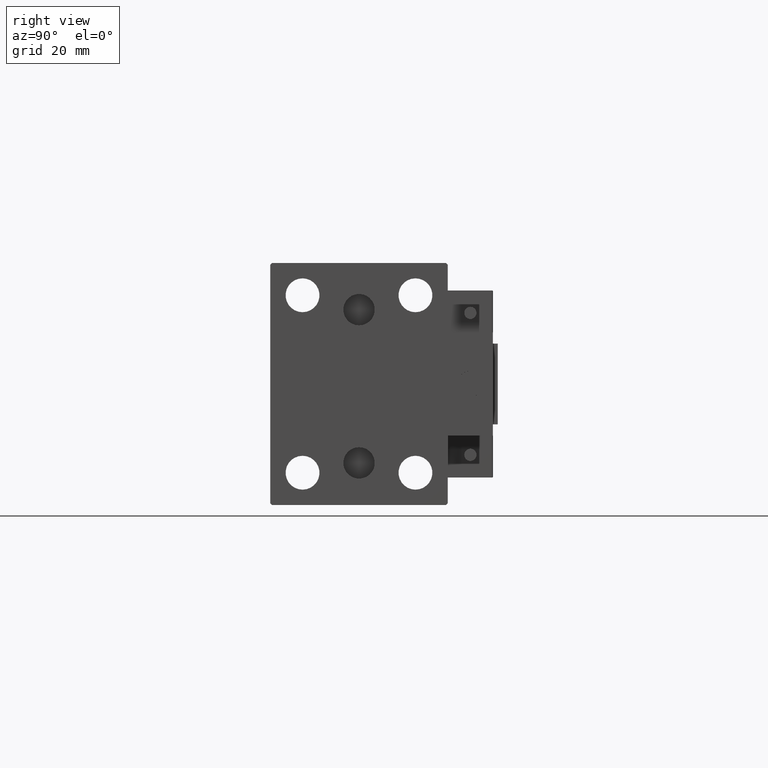
[diagram: clean part render]
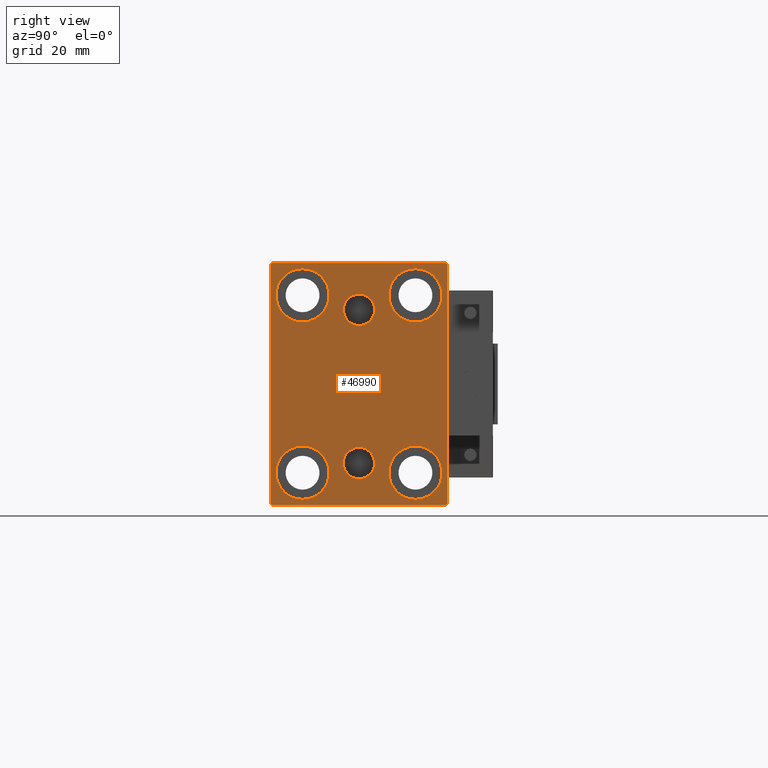
[diagram: same view with one face highlighted and labeled with its STEP entity id]
A machine part, right view. The second image highlights one B-rep face of the part: STEP entity #46990.
In plain terms, the highlighted planar face has unit normal (1, 0, 0).
Its self-contained STEP definition (entity closure, byte-faithful):
#546 = EDGE_LOOP ( 'NONE', ( #43515, #51242 ) ) ;
#714 = FACE_OUTER_BOUND ( 'NONE', #12357, .T. ) ;
#1055 = VERTEX_POINT ( 'NONE', #36162 ) ;
#1093 = AXIS2_PLACEMENT_3D ( 'NONE', #39756, #27754, #38968 ) ;
#1194 = ORIENTED_EDGE ( 'NONE', *, *, #11366, .T. ) ;
#1477 = DIRECTION ( 'NONE',  ( -0.000000000000000000, 0.7071067811865474617, 0.7071067811865474617 ) ) ;
#1506 = EDGE_CURVE ( 'NONE', #1055, #10775, #15504, .T. ) ;
#1922 = LINE ( 'NONE', #4876, #49483 ) ;
#2239 = VERTEX_POINT ( 'NONE', #34065 ) ;
#2317 = CARTESIAN_POINT ( 'NONE',  ( 75.00000000000000000, -17.50000000000000355, -35.75000000000000711 ) ) ;
#2762 = DIRECTION ( 'NONE',  ( -1.000000000000000000, -0.000000000000000000, -0.000000000000000000 ) ) ;
#2958 = ORIENTED_EDGE ( 'NONE', *, *, #26370, .T. ) ;
#3486 = LINE ( 'NONE', #35760, #6266 ) ;
#3873 = DIRECTION ( 'NONE',  ( 0.000000000000000000, 0.000000000000000000, 1.000000000000000000 ) ) ;
#4180 = AXIS2_PLACEMENT_3D ( 'NONE', #40142, #39617, #11073 ) ;
#4277 = AXIS2_PLACEMENT_3D ( 'NONE', #39082, #51880, #51085 ) ;
#4876 = CARTESIAN_POINT ( 'NONE',  ( 75.00000000000000000, 32.25000000000019185, 32.24999999999975131 ) ) ;
#5583 = EDGE_LOOP ( 'NONE', ( #21936, #7555 ) ) ;
#5790 = VECTOR ( 'NONE', #16026, 1000.000000000000000 ) ;
#5878 = AXIS2_PLACEMENT_3D ( 'NONE', #35166, #31164, #26115 ) ;
#5939 = CARTESIAN_POINT ( 'NONE',  ( 75.00000000000000000, 27.49999999999999645, 37.00000000000001421 ) ) ;
#6266 = VECTOR ( 'NONE', #36802, 1000.000000000000000 ) ;
#6592 = DIRECTION ( 'NONE',  ( 0.000000000000000000, -0.7071067811865474617, -0.7071067811865474617 ) ) ;
#6662 = CARTESIAN_POINT ( 'NONE',  ( 75.00000000000000000, 17.49999999999999645, -19.25000000000000355 ) ) ;
#6685 = DIRECTION ( 'NONE',  ( 0.000000000000000000, 0.000000000000000000, -1.000000000000000000 ) ) ;
#7110 = ORIENTED_EDGE ( 'NONE', *, *, #22588, .T. ) ;
#7502 = CIRCLE ( 'NONE', #37314, 4.859999999999999432 ) ;
#7555 = ORIENTED_EDGE ( 'NONE', *, *, #23272, .T. ) ;
#7945 = EDGE_CURVE ( 'NONE', #14513, #13045, #27180, .T. ) ;
#8019 = CARTESIAN_POINT ( 'NONE',  ( 75.00000000000000000, 27.50000000000000355, -37.50000000000000000 ) ) ;
#8658 = DIRECTION ( 'NONE',  ( 1.000000000000000000, 0.000000000000000000, -0.000000000000000000 ) ) ;
#8920 = VERTEX_POINT ( 'NONE', #6662 ) ;
#9516 = DIRECTION ( 'NONE',  ( 0.000000000000000000, 0.000000000000000000, 1.000000000000000000 ) ) ;
#10085 = AXIS2_PLACEMENT_3D ( 'NONE', #39571, #2762, #35291 ) ;
#10221 = CARTESIAN_POINT ( 'NONE',  ( 75.00000000000000000, 17.50000000000000355, 27.49999999999999645 ) ) ;
#10741 = DIRECTION ( 'NONE',  ( 0.000000000000000000, 0.000000000000000000, 1.000000000000000000 ) ) ;
#10775 = VERTEX_POINT ( 'NONE', #39468 ) ;
#10857 = VERTEX_POINT ( 'NONE', #24489 ) ;
#11058 = VERTEX_POINT ( 'NONE', #2317 ) ;
#11070 = EDGE_CURVE ( 'NONE', #14917, #44480, #35123, .T. ) ;
#11073 = DIRECTION ( 'NONE',  ( 0.000000000000000000, 0.000000000000000000, -1.000000000000000000 ) ) ;
#11345 = EDGE_CURVE ( 'NONE', #44480, #1055, #27347, .T. ) ;
#11366 = EDGE_CURVE ( 'NONE', #40686, #8920, #23063, .T. ) ;
#11553 = VERTEX_POINT ( 'NONE', #5939 ) ;
#12354 = DIRECTION ( 'NONE',  ( 0.000000000000000000, 1.000000000000000000, 0.000000000000000000 ) ) ;
#12357 = EDGE_LOOP ( 'NONE', ( #51317, #19848, #47852, #52698, #38463, #7110, #38262, #2958 ) ) ;
#12665 = CARTESIAN_POINT ( 'NONE',  ( 75.00000000000000000, 3.000384657911015074E-15, -24.49999999999999289 ) ) ;
#12970 = DIRECTION ( 'NONE',  ( 1.000000000000000000, 0.000000000000000000, 0.000000000000000000 ) ) ;
#13045 = VERTEX_POINT ( 'NONE', #22614 ) ;
#13669 = DIRECTION ( 'NONE',  ( -0.000000000000000000, -0.7071067811865426878, 0.7071067811865524577 ) ) ;
#13743 = CARTESIAN_POINT ( 'NONE',  ( 75.00000000000000000, -3.571693674697836683E-15, 18.14000000000000767 ) ) ;
#13768 = CARTESIAN_POINT ( 'NONE',  ( 75.00000000000000000, 27.00000000000000355, -37.50000000000000000 ) ) ;
#14241 = ORIENTED_EDGE ( 'NONE', *, *, #21885, .T. ) ;
#14458 = AXIS2_PLACEMENT_3D ( 'NONE', #44137, #24661, #32421 ) ;
#14513 = VERTEX_POINT ( 'NONE', #22689 ) ;
#14917 = VERTEX_POINT ( 'NONE', #34899 ) ;
#15026 = VECTOR ( 'NONE', #28302, 1000.000000000000114 ) ;
#15371 = VECTOR ( 'NONE', #42791, 1000.000000000000000 ) ;
#15504 = LINE ( 'NONE', #48046, #15026 ) ;
#15578 = ORIENTED_EDGE ( 'NONE', *, *, #16728, .F. ) ;
#16026 = DIRECTION ( 'NONE',  ( 0.000000000000000000, -9.251858538542970348E-17, 1.000000000000000000 ) ) ;
#16728 = EDGE_CURVE ( 'NONE', #44505, #28048, #34718, .T. ) ;
#16989 = EDGE_CURVE ( 'NONE', #47986, #11553, #36297, .T. ) ;
#17140 = ORIENTED_EDGE ( 'NONE', *, *, #28201, .T. ) ;
#17498 = FACE_BOUND ( 'NONE', #27187, .T. ) ;
#17813 = VECTOR ( 'NONE', #1477, 1000.000000000000114 ) ;
#17860 = EDGE_CURVE ( 'NONE', #10775, #24693, #24623, .T. ) ;
#17879 = CARTESIAN_POINT ( 'NONE',  ( 75.00000000000000000, 3.595563002296627957E-15, -19.63999999999999346 ) ) ;
#17893 = AXIS2_PLACEMENT_3D ( 'NONE', #36153, #36413, #3873 ) ;
#19588 = AXIS2_PLACEMENT_3D ( 'NONE', #19740, #26951, #47479 ) ;
#19740 = CARTESIAN_POINT ( 'NONE',  ( 75.00000000000000000, -17.49999999999999645, 27.49999999999999645 ) ) ;
#19848 = ORIENTED_EDGE ( 'NONE', *, *, #11070, .T. ) ;
#20333 = CIRCLE ( 'NONE', #10085, 8.250000000000000000 ) ;
#20461 = FACE_BOUND ( 'NONE', #546, .T. ) ;
#20764 = CARTESIAN_POINT ( 'NONE',  ( 75.00000000000000000, 17.50000000000000355, 19.25000000000000000 ) ) ;
#20819 = EDGE_CURVE ( 'NONE', #40818, #2239, #7502, .T. ) ;
#20981 = FACE_BOUND ( 'NONE', #42908, .T. ) ;
#21749 = AXIS2_PLACEMENT_3D ( 'NONE', #49514, #12970, #28722 ) ;
#21885 = EDGE_CURVE ( 'NONE', #45927, #11058, #20333, .T. ) ;
#21936 = ORIENTED_EDGE ( 'NONE', *, *, #7945, .T. ) ;
#22167 = VECTOR ( 'NONE', #6592, 1000.000000000000114 ) ;
#22588 = EDGE_CURVE ( 'NONE', #24693, #47986, #29486, .T. ) ;
#22614 = CARTESIAN_POINT ( 'NONE',  ( 75.00000000000000000, -17.49999999999999645, 35.74999999999999289 ) ) ;
#22689 = CARTESIAN_POINT ( 'NONE',  ( 75.00000000000000000, -17.49999999999999645, 19.25000000000000000 ) ) ;
#22835 = EDGE_CURVE ( 'NONE', #2239, #40818, #29732, .T. ) ;
#22879 = CARTESIAN_POINT ( 'NONE',  ( 75.00000000000000000, -17.50000000000000355, -19.25000000000000355 ) ) ;
#23063 = CIRCLE ( 'NONE', #4277, 8.250000000000000000 ) ;
#23272 = EDGE_CURVE ( 'NONE', #13045, #14513, #48505, .T. ) ;
#23690 = CARTESIAN_POINT ( 'NONE',  ( 75.00000000000000000, 27.50000000000000355, -37.00000000000000000 ) ) ;
#24489 = CARTESIAN_POINT ( 'NONE',  ( 75.00000000000000000, 17.50000000000000355, 35.74999999999999289 ) ) ;
#24623 = LINE ( 'NONE', #36639, #43287 ) ;
#24661 = DIRECTION ( 'NONE',  ( -1.000000000000000000, -0.000000000000000000, -0.000000000000000000 ) ) ;
#24693 = VERTEX_POINT ( 'NONE', #13768 ) ;
#24932 = DIRECTION ( 'NONE',  ( 0.000000000000000000, 0.000000000000000000, 1.000000000000000000 ) ) ;
#24948 = EDGE_CURVE ( 'NONE', #28048, #44505, #51099, .T. ) ;
#24961 = EDGE_CURVE ( 'NONE', #8920, #40686, #28114, .T. ) ;
#24988 = CARTESIAN_POINT ( 'NONE',  ( 75.00000000000000000, -17.50000000000000355, -27.50000000000000355 ) ) ;
#25238 = FACE_BOUND ( 'NONE', #48945, .T. ) ;
#25522 = DIRECTION ( 'NONE',  ( -1.000000000000000000, -0.000000000000000000, -0.000000000000000000 ) ) ;
#26115 = DIRECTION ( 'NONE',  ( 0.000000000000000000, 0.000000000000000000, 1.000000000000000000 ) ) ;
#26370 = EDGE_CURVE ( 'NONE', #11553, #48947, #1922, .T. ) ;
#26951 = DIRECTION ( 'NONE',  ( -1.000000000000000000, -0.000000000000000000, -0.000000000000000000 ) ) ;
#27180 = CIRCLE ( 'NONE', #5878, 8.249999999999992895 ) ;
#27187 = EDGE_LOOP ( 'NONE', ( #17140, #36954 ) ) ;
#27347 = LINE ( 'NONE', #31333, #15371 ) ;
#27754 = DIRECTION ( 'NONE',  ( -1.000000000000000000, -0.000000000000000000, -0.000000000000000000 ) ) ;
#28048 = VERTEX_POINT ( 'NONE', #29432 ) ;
#28114 = CIRCLE ( 'NONE', #14458, 8.250000000000000000 ) ;
#28201 = EDGE_CURVE ( 'NONE', #44726, #10857, #33373, .T. ) ;
#28302 = DIRECTION ( 'NONE',  ( -0.000000000000000000, 0.7071067811865474617, -0.7071067811865474617 ) ) ;
#28722 = DIRECTION ( 'NONE',  ( 0.000000000000000000, 0.000000000000000000, -1.000000000000000000 ) ) ;
#29432 = CARTESIAN_POINT ( 'NONE',  ( 75.00000000000000000, 3.000384657911015074E-15, -29.35999999999999233 ) ) ;
#29486 = LINE ( 'NONE', #33224, #17813 ) ;
#29732 = CIRCLE ( 'NONE', #4180, 4.859999999999999432 ) ;
#30330 = ORIENTED_EDGE ( 'NONE', *, *, #24948, .F. ) ;
#30402 = CARTESIAN_POINT ( 'NONE',  ( 75.00000000000000000, -27.50000000000000355, 37.00000000000001421 ) ) ;
#31164 = DIRECTION ( 'NONE',  ( -1.000000000000000000, -0.000000000000000000, -0.000000000000000000 ) ) ;
#31333 = CARTESIAN_POINT ( 'NONE',  ( 75.00000000000000000, -27.50000000000000355, 37.50000000000000000 ) ) ;
#32421 = DIRECTION ( 'NONE',  ( 0.000000000000000000, 0.000000000000000000, 1.000000000000000000 ) ) ;
#32513 = AXIS2_PLACEMENT_3D ( 'NONE', #10221, #51032, #10741 ) ;
#33224 = CARTESIAN_POINT ( 'NONE',  ( 75.00000000000000000, 32.25000000000000000, -32.25000000000000000 ) ) ;
#33245 = PLANE ( 'NONE',  #21749 ) ;
#33373 = CIRCLE ( 'NONE', #32513, 8.249999999999992895 ) ;
#33405 = ORIENTED_EDGE ( 'NONE', *, *, #24961, .T. ) ;
#33502 = FACE_BOUND ( 'NONE', #46869, .T. ) ;
#34041 = EDGE_CURVE ( 'NONE', #10857, #44726, #36884, .T. ) ;
#34065 = CARTESIAN_POINT ( 'NONE',  ( 75.00000000000000000, -2.976515330312223406E-15, 27.86000000000000654 ) ) ;
#34718 = CIRCLE ( 'NONE', #43242, 4.859999999999999432 ) ;
#34862 = CARTESIAN_POINT ( 'NONE',  ( 75.00000000000000000, -32.25000000000000711, 32.25000000000000711 ) ) ;
#34899 = CARTESIAN_POINT ( 'NONE',  ( 75.00000000000000000, -27.00000000000001776, 37.50000000000000000 ) ) ;
#35123 = LINE ( 'NONE', #34862, #22167 ) ;
#35166 = CARTESIAN_POINT ( 'NONE',  ( 75.00000000000000000, -17.49999999999999645, 27.49999999999999645 ) ) ;
#35259 = EDGE_CURVE ( 'NONE', #48947, #14917, #3486, .T. ) ;
#35291 = DIRECTION ( 'NONE',  ( 0.000000000000000000, 0.000000000000000000, 1.000000000000000000 ) ) ;
#35422 = AXIS2_PLACEMENT_3D ( 'NONE', #24988, #25522, #9516 ) ;
#35760 = CARTESIAN_POINT ( 'NONE',  ( 75.00000000000000000, 27.49999999999999645, 37.50000000000000711 ) ) ;
#36153 = CARTESIAN_POINT ( 'NONE',  ( 75.00000000000000000, 3.000384657911015074E-15, -24.49999999999999289 ) ) ;
#36162 = CARTESIAN_POINT ( 'NONE',  ( 75.00000000000000000, -27.50000000000000355, -37.00000000000000000 ) ) ;
#36297 = LINE ( 'NONE', #8019, #5790 ) ;
#36413 = DIRECTION ( 'NONE',  ( 1.000000000000000000, 0.000000000000000000, -0.000000000000000000 ) ) ;
#36639 = CARTESIAN_POINT ( 'NONE',  ( 75.00000000000000000, -27.50000000000000355, -37.50000000000000000 ) ) ;
#36802 = DIRECTION ( 'NONE',  ( 0.000000000000000000, -1.000000000000000000, -1.261617073437677999E-16 ) ) ;
#36884 = CIRCLE ( 'NONE', #1093, 8.249999999999992895 ) ;
#36954 = ORIENTED_EDGE ( 'NONE', *, *, #34041, .T. ) ;
#37251 = FACE_BOUND ( 'NONE', #5583, .T. ) ;
#37314 = AXIS2_PLACEMENT_3D ( 'NONE', #51231, #38696, #6685 ) ;
#37724 = ORIENTED_EDGE ( 'NONE', *, *, #48132, .T. ) ;
#38262 = ORIENTED_EDGE ( 'NONE', *, *, #16989, .T. ) ;
#38463 = ORIENTED_EDGE ( 'NONE', *, *, #17860, .T. ) ;
#38696 = DIRECTION ( 'NONE',  ( 1.000000000000000000, 0.000000000000000000, 0.000000000000000000 ) ) ;
#38968 = DIRECTION ( 'NONE',  ( 0.000000000000000000, 0.000000000000000000, 1.000000000000000000 ) ) ;
#39082 = CARTESIAN_POINT ( 'NONE',  ( 75.00000000000000000, 17.49999999999999645, -27.50000000000000355 ) ) ;
#39468 = CARTESIAN_POINT ( 'NONE',  ( 75.00000000000000000, -27.00000000000000355, -37.50000000000000000 ) ) ;
#39571 = CARTESIAN_POINT ( 'NONE',  ( 75.00000000000000000, -17.50000000000000355, -27.50000000000000355 ) ) ;
#39617 = DIRECTION ( 'NONE',  ( 1.000000000000000000, 0.000000000000000000, 0.000000000000000000 ) ) ;
#39756 = CARTESIAN_POINT ( 'NONE',  ( 75.00000000000000000, 17.50000000000000355, 27.49999999999999645 ) ) ;
#40142 = CARTESIAN_POINT ( 'NONE',  ( 75.00000000000000000, -3.571693674697836683E-15, 23.00000000000000711 ) ) ;
#40530 = CIRCLE ( 'NONE', #35422, 8.250000000000000000 ) ;
#40686 = VERTEX_POINT ( 'NONE', #52722 ) ;
#40818 = VERTEX_POINT ( 'NONE', #13743 ) ;
#42791 = DIRECTION ( 'NONE',  ( 0.000000000000000000, 0.000000000000000000, -1.000000000000000000 ) ) ;
#42908 = EDGE_LOOP ( 'NONE', ( #30330, #15578 ) ) ;
#43242 = AXIS2_PLACEMENT_3D ( 'NONE', #12665, #8658, #24932 ) ;
#43287 = VECTOR ( 'NONE', #12354, 1000.000000000000000 ) ;
#43515 = ORIENTED_EDGE ( 'NONE', *, *, #20819, .F. ) ;
#44137 = CARTESIAN_POINT ( 'NONE',  ( 75.00000000000000000, 17.49999999999999645, -27.50000000000000355 ) ) ;
#44480 = VERTEX_POINT ( 'NONE', #30402 ) ;
#44505 = VERTEX_POINT ( 'NONE', #17879 ) ;
#44726 = VERTEX_POINT ( 'NONE', #20764 ) ;
#45927 = VERTEX_POINT ( 'NONE', #22879 ) ;
#46869 = EDGE_LOOP ( 'NONE', ( #1194, #33405 ) ) ;
#46990 = ADVANCED_FACE ( 'NONE', ( #20461, #20981, #33502, #37251, #17498, #25238, #714 ), #33245, .T. ) ;
#47479 = DIRECTION ( 'NONE',  ( 0.000000000000000000, 0.000000000000000000, 1.000000000000000000 ) ) ;
#47852 = ORIENTED_EDGE ( 'NONE', *, *, #11345, .T. ) ;
#47986 = VERTEX_POINT ( 'NONE', #23690 ) ;
#48046 = CARTESIAN_POINT ( 'NONE',  ( 75.00000000000000000, -32.25000000000000000, -32.25000000000000000 ) ) ;
#48132 = EDGE_CURVE ( 'NONE', #11058, #45927, #40530, .T. ) ;
#48505 = CIRCLE ( 'NONE', #19588, 8.249999999999992895 ) ;
#48945 = EDGE_LOOP ( 'NONE', ( #37724, #14241 ) ) ;
#48947 = VERTEX_POINT ( 'NONE', #49502 ) ;
#49483 = VECTOR ( 'NONE', #13669, 1000.000000000000000 ) ;
#49502 = CARTESIAN_POINT ( 'NONE',  ( 75.00000000000000000, 27.00000000000001066, 37.50000000000000711 ) ) ;
#49514 = CARTESIAN_POINT ( 'NONE',  ( 75.00000000000000000, 0.000000000000000000, 0.000000000000000000 ) ) ;
#51032 = DIRECTION ( 'NONE',  ( -1.000000000000000000, -0.000000000000000000, -0.000000000000000000 ) ) ;
#51085 = DIRECTION ( 'NONE',  ( 0.000000000000000000, 0.000000000000000000, 1.000000000000000000 ) ) ;
#51099 = CIRCLE ( 'NONE', #17893, 4.859999999999999432 ) ;
#51231 = CARTESIAN_POINT ( 'NONE',  ( 75.00000000000000000, -3.571693674697836683E-15, 23.00000000000000711 ) ) ;
#51242 = ORIENTED_EDGE ( 'NONE', *, *, #22835, .F. ) ;
#51317 = ORIENTED_EDGE ( 'NONE', *, *, #35259, .T. ) ;
#51880 = DIRECTION ( 'NONE',  ( -1.000000000000000000, -0.000000000000000000, -0.000000000000000000 ) ) ;
#52698 = ORIENTED_EDGE ( 'NONE', *, *, #1506, .T. ) ;
#52722 = CARTESIAN_POINT ( 'NONE',  ( 75.00000000000000000, 17.49999999999999645, -35.75000000000000711 ) ) ;